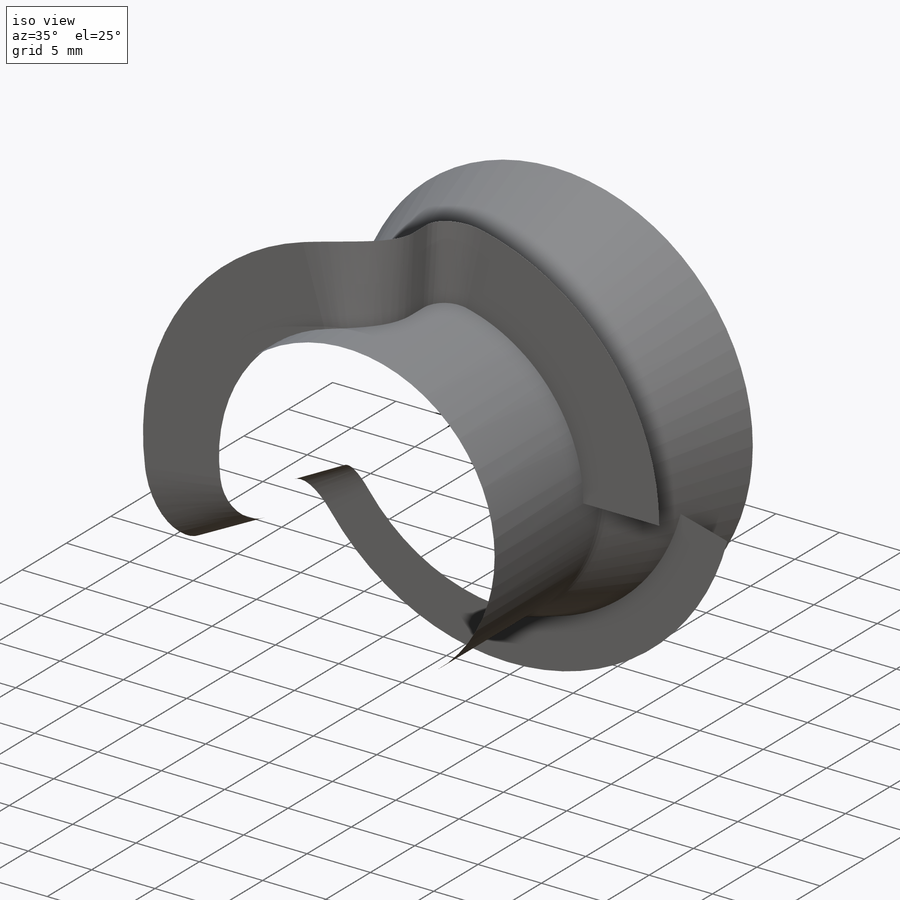
[diagram: iso view]
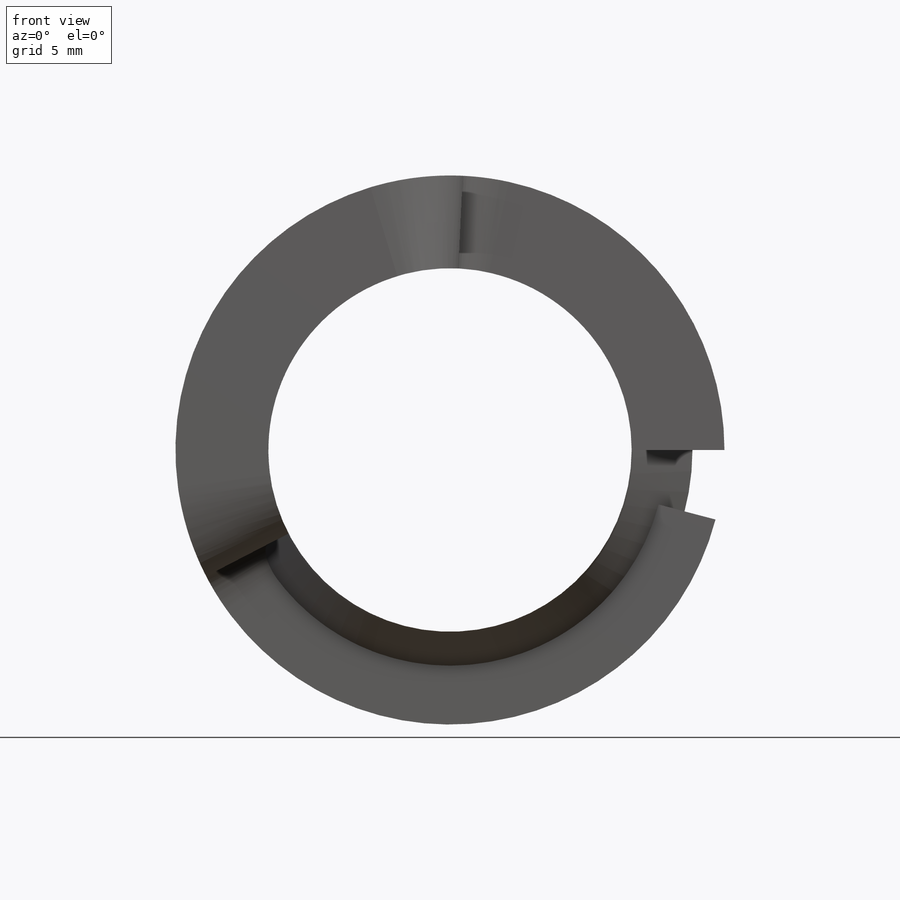
[diagram: front view]
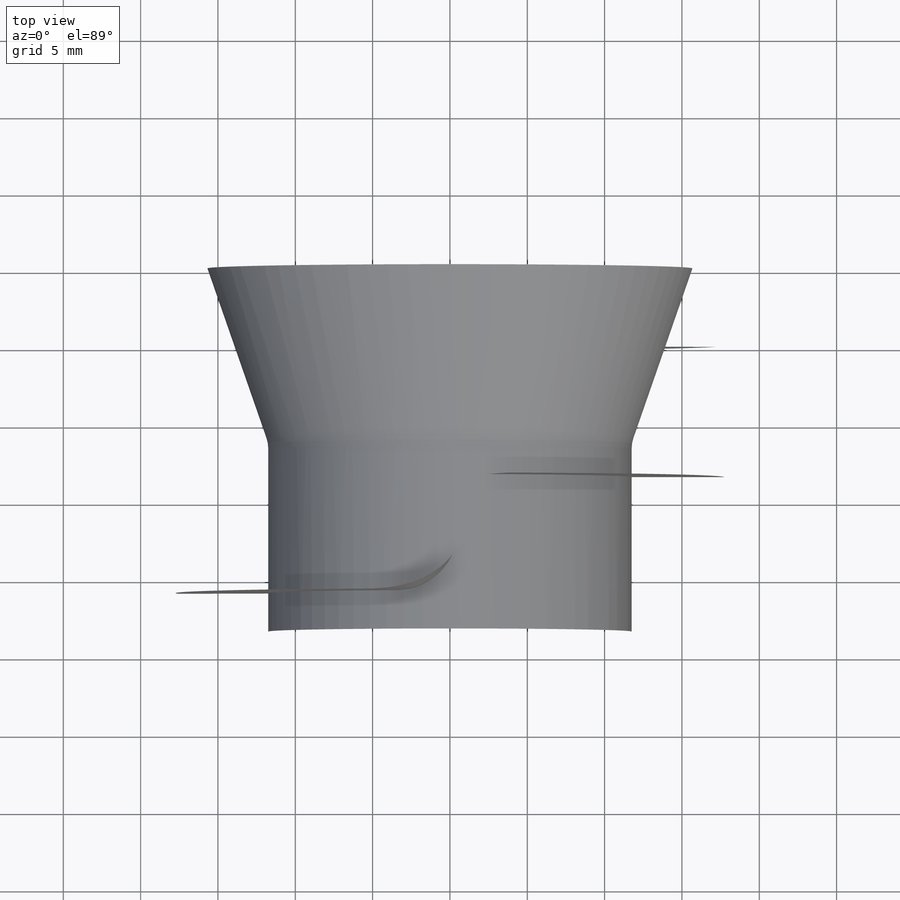
[diagram: top view]
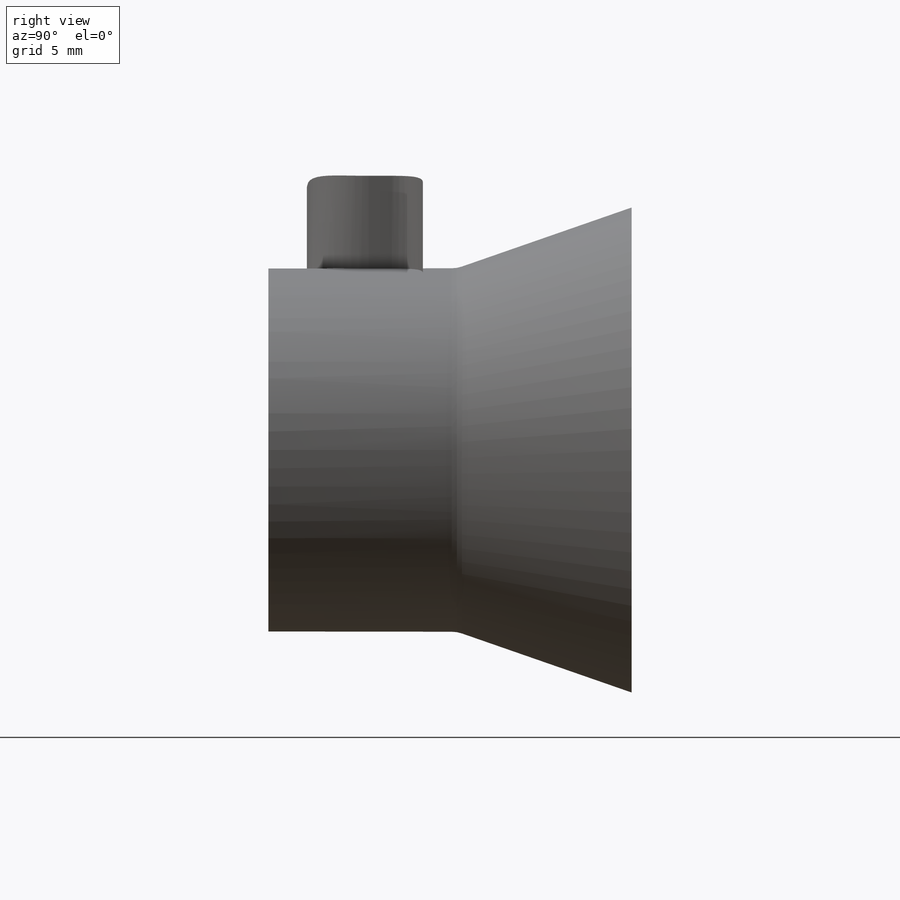
[diagram: right view]
SOLIDWORKS PART (.sldprt)
format: sldprt  version: not decoded by parser v0  size: 368,640 bytes
history: native  units: mm
features: sketch x5, plane x4, delete_body x2, material x1, extrude x1 (+10 scaffold rows collapsed)
feature tree (23):
  scaffold x10  (default folders/planes/origin — collapsed)
  material  "Material <nicht festgelegt>"
  plane  "Ebene1"
  plane  "Ebene2"
  plane  "Ebene3"
  sketch  "Skizze1"  dims[D1=23.5mm]
  extrude  "Zylinder"  Depth=23mm
  plane  "Ebene Tan"
  sketch  "Skizze2"  dims[c1.D4=4.0mm c1.D2=3.0mm c1.D1=10.0mm c2.D2=7.0mm c2.D3=20.0mm c2.D1=~73.827427mm c2.D4=4.0mm c2.D5=2.0mm c2.D6=7.5mm c2.D7=~73.827427mm c2.D8=4.0mm c2.D9=5.0mm c3.D8=~73.888355mm c3.D1=~73.827427mm c3.D7=~73.827427mm c4.D1=~73.827427mm c4.D5=1.0mm c4.D3=1.0mm]
  sketch  "Bahn"
  sketch  "Profil"  dims[D1=6.0mm]
  delete_body  "Körper-Löschen Zyl"
  sketch  "Skizze6"  dims[c1.D2=2.0mm c1.D1=23.5mm c2.D1=360.0deg]
  delete_body  "Schnittkurve"
decode coverage: 5 of 8 modeling features carry decoded parameters
note: ~ marks probable driven/reference dimensions
note: suppression state not decoded; provenance and decode notes live in map.json
